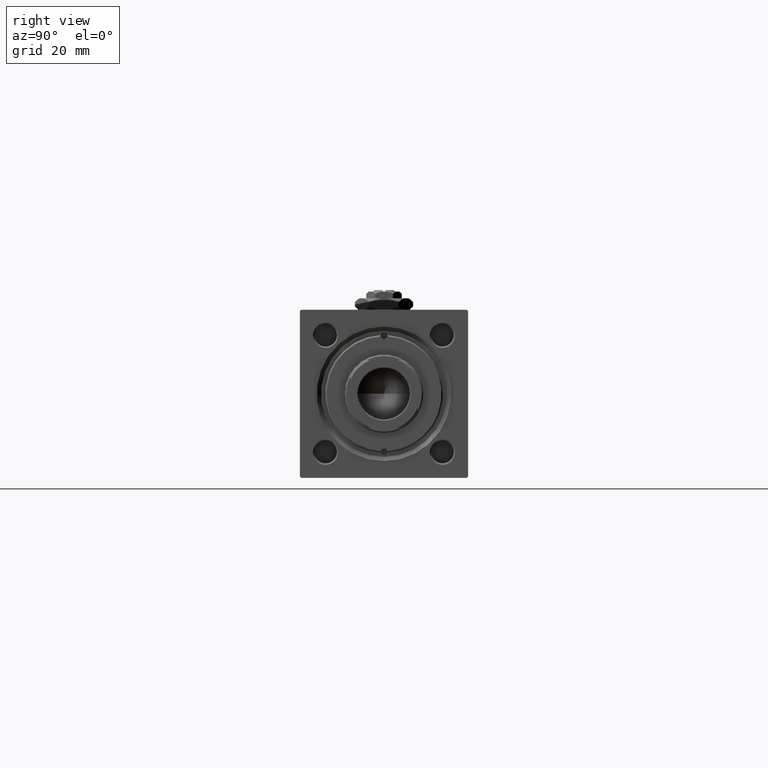
[diagram: clean part render]
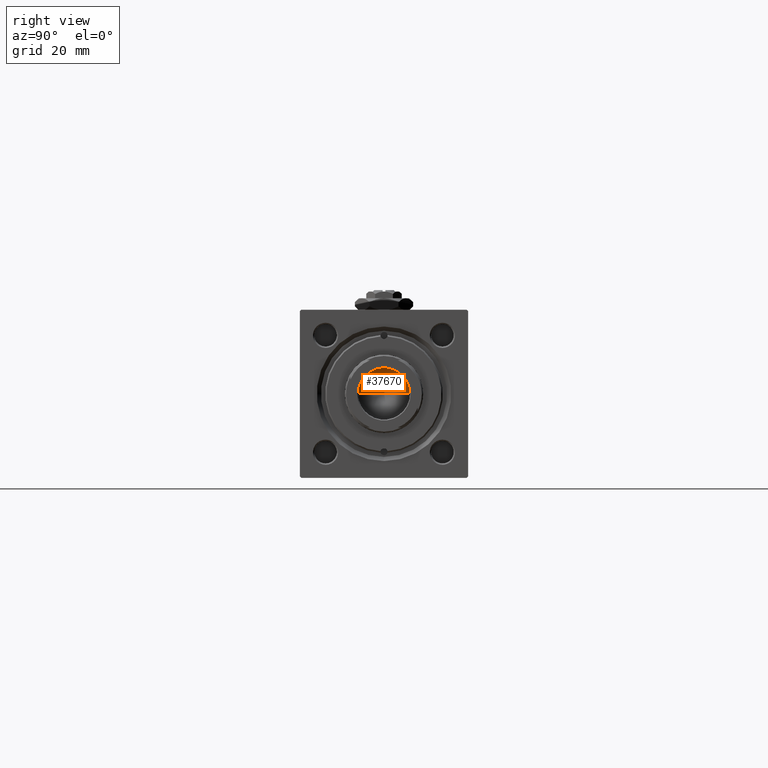
[diagram: same view with one face highlighted and labeled with its STEP entity id]
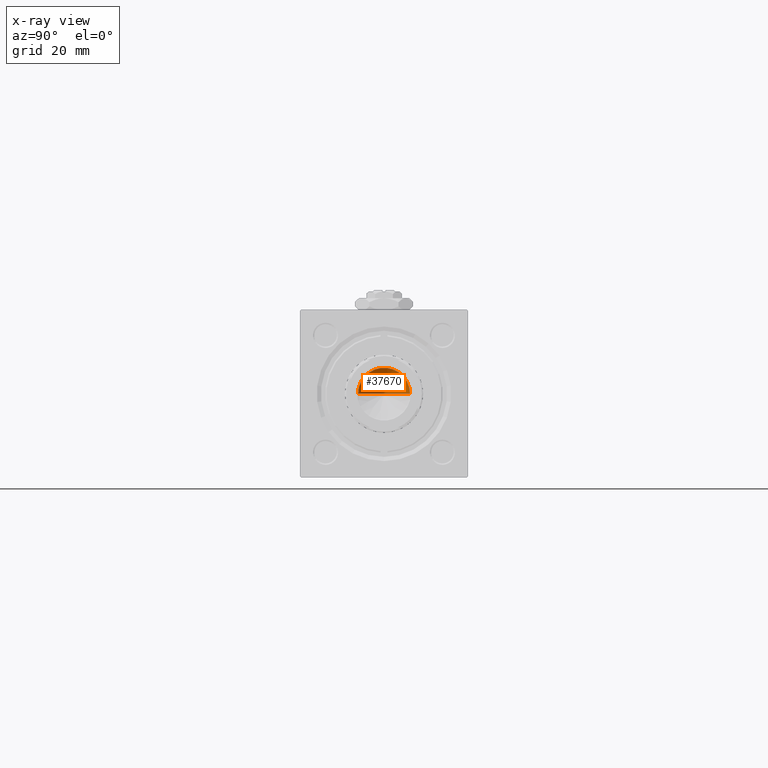
[diagram: x-ray of the same camera — body ghosted, the highlighted face saturated]
A machine part, right view. The second image highlights one B-rep face of the part: STEP entity #37670.
The next image is the same camera in x-ray: the body ghosted, the highlighted face saturated — about 0% of this face is hidden behind the body in this view.
In plain terms, the highlighted conical surface has half-angle 59 deg.
Its self-contained STEP definition (entity closure, byte-faithful):
#549 = ORIENTED_EDGE ( 'NONE', *, *, #42500, .F. ) ;
#2298 = CIRCLE ( 'NONE', #45267, 9.249999999999992895 ) ;
#4938 = CARTESIAN_POINT ( 'NONE',  ( 9.249999999999992895, 0.000000000000000000, 161.0000000000000000 ) ) ;
#6821 = CARTESIAN_POINT ( 'NONE',  ( -9.249999999999992895, 1.132798289211300712E-15, 161.0000000000000000 ) ) ;
#10368 = LINE ( 'NONE', #30172, #18271 ) ;
#10908 = CARTESIAN_POINT ( 'NONE',  ( 0.000000000000000000, 0.000000000000000000, 161.0000000000000000 ) ) ;
#11970 = DIRECTION ( 'NONE',  ( -0.000000000000000000, -0.000000000000000000, 1.000000000000000000 ) ) ;
#13089 = LINE ( 'NONE', #4938, #33652 ) ;
#13395 = EDGE_CURVE ( 'NONE', #26832, #51593, #10368, .T. ) ;
#13463 = EDGE_CURVE ( 'NONE', #51593, #47413, #2298, .T. ) ;
#18271 = VECTOR ( 'NONE', #38619, 1000.000000000000000 ) ;
#21265 = DIRECTION ( 'NONE',  ( 0.8571673007021122226, 0.000000000000000000, 0.5150380749100542666 ) ) ;
#23048 = DIRECTION ( 'NONE',  ( 1.000000000000000000, 0.000000000000000000, 0.000000000000000000 ) ) ;
#23448 = AXIS2_PLACEMENT_3D ( 'NONE', #10908, #11970, #23048 ) ;
#23544 = CARTESIAN_POINT ( 'NONE',  ( 0.000000000000000000, 0.000000000000000000, 161.0000000000000000 ) ) ;
#25889 = ORIENTED_EDGE ( 'NONE', *, *, #13463, .T. ) ;
#26832 = VERTEX_POINT ( 'NONE', #52017 ) ;
#28527 = ORIENTED_EDGE ( 'NONE', *, *, #13395, .T. ) ;
#30172 = CARTESIAN_POINT ( 'NONE',  ( -9.249999999999992895, 1.132798289211300712E-15, 161.0000000000000000 ) ) ;
#33652 = VECTOR ( 'NONE', #21265, 1000.000000000000000 ) ;
#35703 = DIRECTION ( 'NONE',  ( -0.000000000000000000, -0.000000000000000000, 1.000000000000000000 ) ) ;
#35944 = EDGE_LOOP ( 'NONE', ( #549, #28527, #25889 ) ) ;
#37670 = ADVANCED_FACE ( 'NONE', ( #47101 ), #46240, .F. ) ;
#38619 = DIRECTION ( 'NONE',  ( -0.8571673007021122226, 1.049727191138618572E-16, 0.5150380749100542666 ) ) ;
#40495 = CARTESIAN_POINT ( 'NONE',  ( 9.249999999999992895, 0.000000000000000000, 161.0000000000000000 ) ) ;
#42500 = EDGE_CURVE ( 'NONE', #26832, #47413, #13089, .T. ) ;
#44415 = DIRECTION ( 'NONE',  ( 1.000000000000000000, 0.000000000000000000, 0.000000000000000000 ) ) ;
#45267 = AXIS2_PLACEMENT_3D ( 'NONE', #23544, #35703, #44415 ) ;
#46240 = CONICAL_SURFACE ( 'NONE', #23448, 9.249999999999992895, 1.029744258676654312 ) ;
#47101 = FACE_OUTER_BOUND ( 'NONE', #35944, .T. ) ;
#47413 = VERTEX_POINT ( 'NONE', #40495 ) ;
#51593 = VERTEX_POINT ( 'NONE', #6821 ) ;
#52017 = CARTESIAN_POINT ( 'NONE',  ( -9.769621978240258809E-15, 0.000000000000000000, 155.4420392739950785 ) ) ;